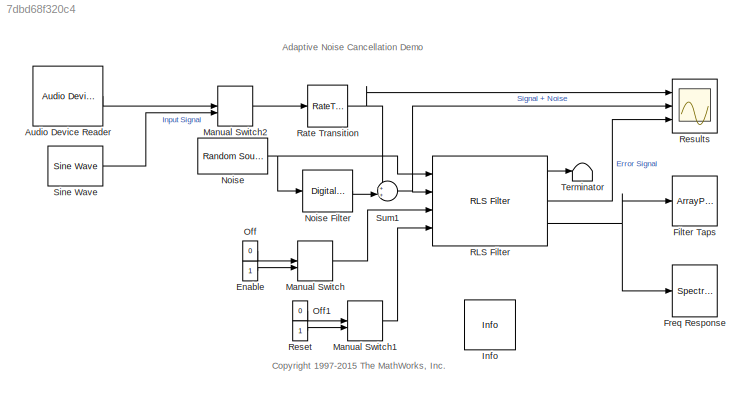
MODEL slx_7dbd68f320c4
KIND model
CONFIG AbsTol = 1e-6
CONFIG EnableMultiTasking = on
CONFIG FixedStep = auto
CONFIG MaxStep = auto
CONFIG MinStep = auto
CONFIG RelTol = 1e-3
CONFIG SampleTimeConstraint = Unconstrained
CONFIG Solver = FixedStepDiscrete
CONFIG SolverName = FixedStepDiscrete
CONFIG StartTime = 0
CONFIG StopTime = inf
BLOCK [Reference] Audio Device Reader  REF=audiosources/Audio Device
Reader
  Ports = [0, 1]
  SourceBlock = audiosources/Audio Device\nReader
  SourceProductBaseCode = AU
  SourceType = Audio Device Reader
BLOCK [Constant] Enable
  OutDataTypeStr = boolean
BLOCK [ArrayPlot] Filter Taps
  Ports = [1]
  ScopeSpecificationString = dsp.scopes.ArrayPlotBlockSpecification('CurrentConfiguration', extmgr.ConfigurationSet(extmgr.Configuration('Core','General UI',true),extmgr.Configuration('Core','Source UI',true),extmgr.Configuration('Sources','WiredSimulink',true),extmgr.Configuration('Sources','Simulink',false),extmgr.Configuration('Sources','File',false),extmgr.Configuration('Sources','Workspace',false),extmgr.Configuration('S...<+2746ch>
BLOCK [SpectrumAnalyzer] Freq Response
  Ports = [1]
  ScopeSpecificationString = spbscopes.SpectrumAnalyzerBlockCfg('CurrentConfiguration', extmgr.ConfigurationSet(extmgr.Configuration('Core','General UI',true),extmgr.Configuration('Core','Source UI',true),extmgr.Configuration('Sources','WiredSimulink',true),extmgr.Configuration('Visuals','Spectrum',true,'AxesProperties',struct('Color',{[0 0 0],[0 0 0]},'XColor',{[0.686274509804 0.686274509804 0.686274509804],[0.686274509804 0...<+2041ch>
BLOCK [Reference] Info  REF=dspmisc/Info
  Ports = []
  SourceBlock = dspmisc/Info
  SourceProductBaseCode = DS
  SourceType = Info
BLOCK [ManualSwitch] Manual Switch
  CurrentSetting = 0
  NameLocation = top
BLOCK [ManualSwitch] Manual Switch1
  NameLocation = top
BLOCK [ManualSwitch] Manual Switch2
  NameLocation = top
BLOCK [Reference] Noise  REF=dspsrcs4/Random
Source
  Ports = [0, 1]
  SourceBlock = dspsrcs4/Random\nSource
  SourceProductBaseCode = DS
  SourceType = Random Source
BLOCK [Reference] Noise Filter  REF=dsparch4/Digital
Filter Design
  Ports = [1, 1]
  SourceBlock = dsparch4/Digital\nFilter Design
  SourceProductBaseCode = DS
  SourceType = Digital Filter Design
  UserDataPersistent = on
BLOCK [Constant] Off
  NameLocation = top
  OutDataTypeStr = boolean
  Value = 0
BLOCK [Constant] Off1
  NameLocation = top
  OutDataTypeStr = boolean
  Value = 0
BLOCK [Reference] RLS Filter  REF=dspadpt3/RLS Filter
  Ports = [4, 3]
  SourceBlock = dspadpt3/RLS Filter
  SourceProductBaseCode = DS
  SourceType = RLS filter
BLOCK [RateTransition] Rate Transition
BLOCK [Constant] Reset
  OutDataTypeStr = boolean
BLOCK [Scope] Results
  DefaultConfigurationName = spbscopes.TimeScopeBlockCfg
  Floating = off
  NumInputPorts = 3
  Ports = [3]
  ScopeSpecificationString = spbscopes.TimeScopeBlockCfg('CurrentConfiguration', extmgr.ConfigurationSet(extmgr.Configuration('Core','General UI',true,'ShowPlaybackToolbar',false),extmgr.Configuration('Core','Source UI',true),extmgr.Configuration('Sources','WiredSimulink',true,'PointsPerSignal',50000),extmgr.Configuration('Visuals','Time Domain',true,'DisplayLayoutDimensions',[3 1],'DisplayPropertyDefaults',struct('LegendVisi...<+46467ch>
BLOCK [Reference] Sine Wave  REF=dspsrcs4/Sine Wave
  Ports = [0, 1]
  SourceBlock = dspsrcs4/Sine Wave
  SourceProductBaseCode = DS
  SourceType = Sine Wave
BLOCK [Sum] Sum1
  InputSameDT = on
  Inputs = ++|
  OutDataTypeStr = Inherit: Same as first input
  Ports = [2, 1]
  SaturateOnIntegerOverflow = on
BLOCK [Terminator] Terminator
ANNOTATION (root): Adaptive Noise Cancellation Demo
ANNOTATION (root): <copyright redacted>
LINE Audio Device Reader:1 -> Manual Switch2:1
LINE Enable:1 -> Manual Switch:2
LINE Manual Switch1:1 -> RLS Filter:4
LINE Manual Switch2:1 -> Rate Transition:1
LINE Manual Switch:1 -> RLS Filter:3
LINE Noise Filter:1 -> Sum1:2
NET Noise:1 -> Noise Filter:1, RLS Filter:1
LINE Off1:1 -> Manual Switch1:1
LINE Off:1 -> Manual Switch:1
LINE RLS Filter:1 -> Terminator:1
LINE RLS Filter:2 -> Results:3
NET RLS Filter:3 -> Filter Taps:1, Freq Response:1
NET Rate Transition:1 -> Results:1, Sum1:1
LINE Reset:1 -> Manual Switch1:2
LINE Sine Wave:1 -> Manual Switch2:2
NET Sum1:1 -> RLS Filter:2, Results:2
note: NET lines group one-source signal fan-out (src -> all destinations, sorted); 1:1 wires keep LINE
